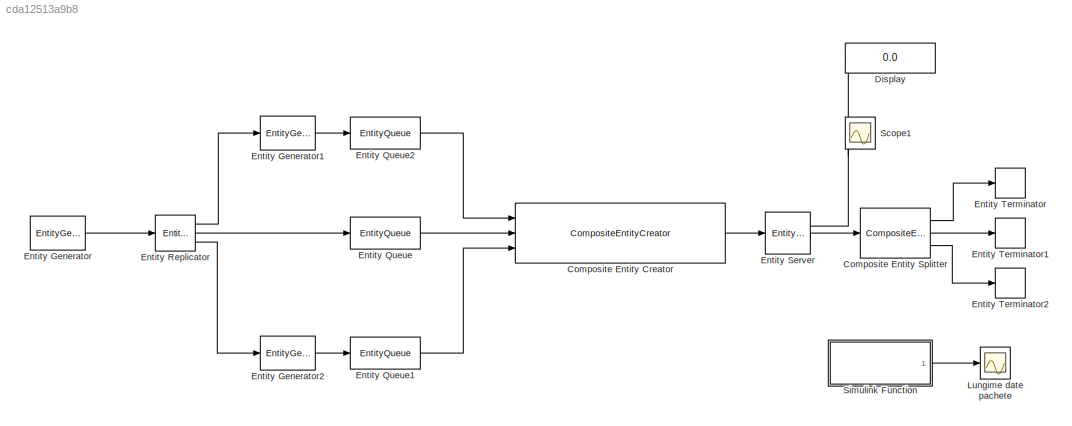
MODEL slx_cda12513a9b8
KIND model
CONFIG AbsTol = auto
CONFIG FixedStep = auto
CONFIG MaxStep = auto
CONFIG MinStep = auto
CONFIG RelTol = 1e-3
CONFIG SampleTimeConstraint = Unconstrained
CONFIG Solver = VariableStepDiscrete
CONFIG SolverMode = Auto
CONFIG SolverName = VariableStepDiscrete
CONFIG StartTime = 0.0
CONFIG StopTime = 500
BLOCK [CompositeEntityCreator] Composite Entity Creator
  EntityTypeName = Combined
  InputEntityName = HeaderLength|PayloadLength|TrailerLength
  InputPortMap = u0,u1,u2
  InputPortMessageModes = m,m,m
  NumberInputPorts = 3
  OutputPortMap = o0
  OutputPortMessageModes = m
  Ports = [3, 1]
BLOCK [CompositeEntitySplitter] Composite Entity Splitter
  InputPortMap = u0
  InputPortMessageModes = m
  NumberOutputPorts = 3
  OutputPortMap = o0,o1,o2
  OutputPortMessageModes = m,m,m
  Ports = [1, 3]
BLOCK [Display] Display
  Decimation = 1
  Ports = [1]
BLOCK [EntityGenerator] Entity Generator
  AttributeInitialValue = 1|0
  AttributeName = PayloadLength|Length
  EntityType = Structured
  EntityTypeName = Payload
  GenerateAction = persistent x\n\nif (isempty(x))\n    rng(86493);\n    x = true;\nend\nentity.PayloadLength = randi([10,1500]);
  IntergenerationTimeAction = persistent init\nif (isempty(init))\n    init = true;\n    rng(23795);\nend\ndt = exprnd(1);
  OutputPortMap = o3
  OutputPortMessageModes = m
  Ports = [0, 1]
  TimeSource = MATLAB action
BLOCK [EntityGenerator] Entity Generator1
  AttributeInitialValue = 14
  AttributeName = HeaderLength
  EntityType = Structured
  EntityTypeName = Header
  GenerationMethod = Event-based
  InputPortMap = u0
  InputPortMessageModes = m
  OutputPortMap = o3
  OutputPortMessageModes = m
  Ports = [1, 1]
BLOCK [EntityGenerator] Entity Generator2
  AttributeInitialValue = 4
  AttributeName = TrailerLength
  EntityType = Structured
  EntityTypeName = Trailer
  GenerationMethod = Event-based
  InputPortMap = u0
  InputPortMessageModes = m
  OutputPortMap = o3
  OutputPortMessageModes = m
  Ports = [1, 1]
BLOCK [EntityQueue] Entity Queue
  InputPortMap = u0
  InputPortMessageModes = m
  OutputPortMap = o5
  OutputPortMessageModes = m
  Ports = [1, 1]
BLOCK [EntityQueue] Entity Queue1
  InputPortMap = u0
  InputPortMessageModes = m
  OutputPortMap = o5
  OutputPortMessageModes = m
  Ports = [1, 1]
BLOCK [EntityQueue] Entity Queue2
  InputPortMap = u0
  InputPortMessageModes = m
  OutputPortMap = o5
  OutputPortMessageModes = m
  Ports = [1, 1]
BLOCK [EntityReplicator] Entity Replicator
  InputPortMap = u0
  InputPortMessageModes = m
  NumberReplicas = 2
  OutputPortMap = o0,o1,o2
  OutputPortMessageModes = m,m,m
  Ports = [1, 3]
BLOCK [EntityServer] Entity Server
  Capacity = 1
  EntryAction = entity.PayloadLength.Length = ...\n    (entity.HeaderLength.HeaderLength + ...\n    entity.PayloadLength.PayloadLength + ...\n    entity.TrailerLength.TrailerLength) * 0.001;
  InputPortMap = u2
  InputPortMessageModes = m
  NumberEntitiesDeparted = on
  OutputPortMap = o0,o9
  OutputPortMessageModes = n,m
  Ports = [1, 2]
BLOCK [EntityTerminator] Entity Terminator
  InputPortMap = u0
  InputPortMessageModes = m
  Ports = [1]
BLOCK [EntityTerminator] Entity Terminator1
  EntryAction = f(entity.PayloadLength);
  InputPortMap = u0
  InputPortMessageModes = m
  Ports = [1]
BLOCK [EntityTerminator] Entity Terminator2
  InputPortMap = u0
  InputPortMessageModes = m
  Ports = [1]
BLOCK [Scope] Lungime date pachete
  Ports = [1]
  ScopeSpecificationString = Simulink.scopes.TimeScopeBlockCfg('CurrentConfiguration', extmgr.ConfigurationSet(extmgr.Configuration('Core','General UI',true),extmgr.Configuration('Core','Source UI',true),extmgr.Configuration('Sources','WiredSimulink',true),extmgr.Configuration('Visuals','Time Domain',true,'SerializedDisplays',{struct('MinYLimReal','-187.25','MaxYLimReal','1685.25','YLabelReal','','MinYLimMag',' 0.00000','MaxY...<+1395ch>
BLOCK [Scope] Scope1
  Ports = [1]
  ScopeSpecificationString = Simulink.scopes.TimeScopeBlockCfg('CurrentConfiguration', extmgr.ConfigurationSet(extmgr.Configuration('Core','General UI',true),extmgr.Configuration('Core','Source UI',true),extmgr.Configuration('Sources','WiredSimulink',true,'DataLoggingVariableName','ScopeData1'),extmgr.Configuration('Visuals','Time Domain',true,'SerializedDisplays',{struct('MinYLimReal','-56.625','MaxYLimReal','519.625','YLabe...<+1491ch>
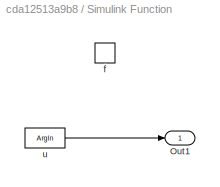
BLOCK [SubSystem] Simulink Function
  Ports = [0, 1, 0, 1]
  RequestExecContextInheritance = off
  TreatAsAtomicUnit = on
  Variant = off
BLOCK [Outport] Simulink Function/Out1
  IconDisplay = Port number
BLOCK [TriggerPort] Simulink Function/f
  FunctionName = f
  IsSimulinkFunction = on
  Ports = []
  StatesWhenEnabling = held
  TriggerType = function-call
  VariantControl = Variant
BLOCK [ArgIn] Simulink Function/u
  ArgumentName = u
  DisableCoverage = on
LINE Composite Entity Creator:1 -> Entity Server:1
LINE Composite Entity Splitter:1 -> Entity Terminator:1
LINE Composite Entity Splitter:2 -> Entity Terminator1:1
LINE Composite Entity Splitter:3 -> Entity Terminator2:1
LINE Entity Generator1:1 -> Entity Queue2:1
LINE Entity Generator2:1 -> Entity Queue1:1
LINE Entity Generator:1 -> Entity Replicator:1
LINE Entity Queue1:1 -> Composite Entity Creator:3
LINE Entity Queue2:1 -> Composite Entity Creator:1
LINE Entity Queue:1 -> Composite Entity Creator:2
LINE Entity Replicator:1 -> Entity Generator1:1
LINE Entity Replicator:2 -> Entity Queue:1
LINE Entity Replicator:3 -> Entity Generator2:1
NET Entity Server:1 -> Display:1, Scope1:1
LINE Entity Server:2 -> Composite Entity Splitter:1
LINE Simulink Function/u:1 -> Simulink Function/Out1:1
LINE Simulink Function:1 -> Lungime date pachete:1
note: NET lines group one-source signal fan-out (src -> all destinations, sorted); 1:1 wires keep LINE
